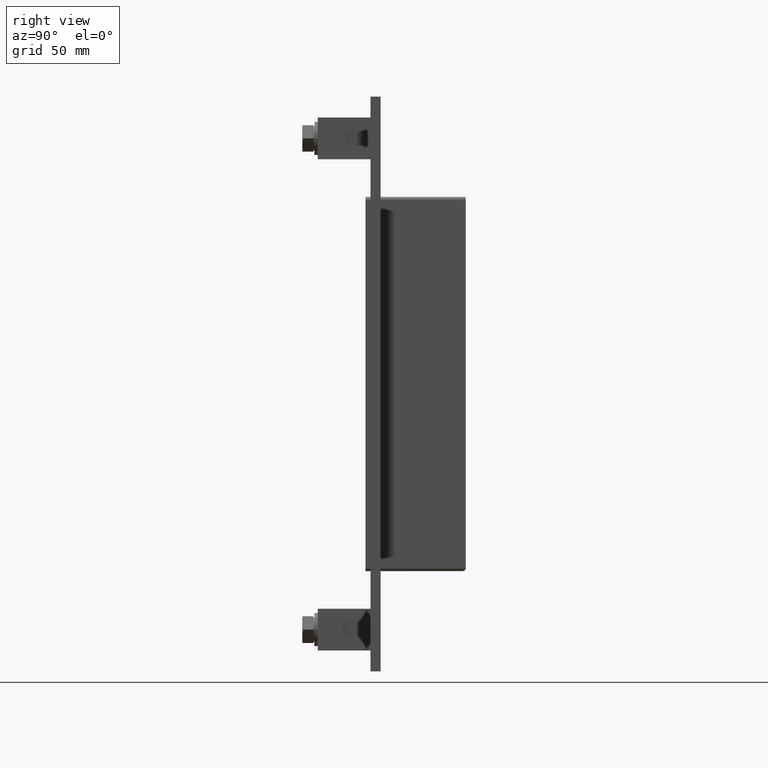
[diagram: clean part render]
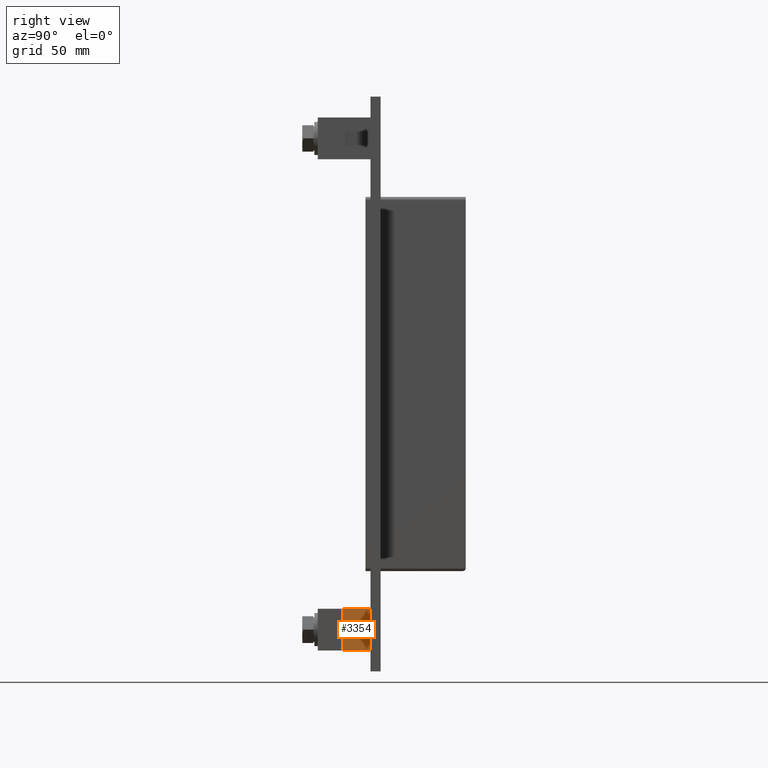
[diagram: same view with one face highlighted and labeled with its STEP entity id]
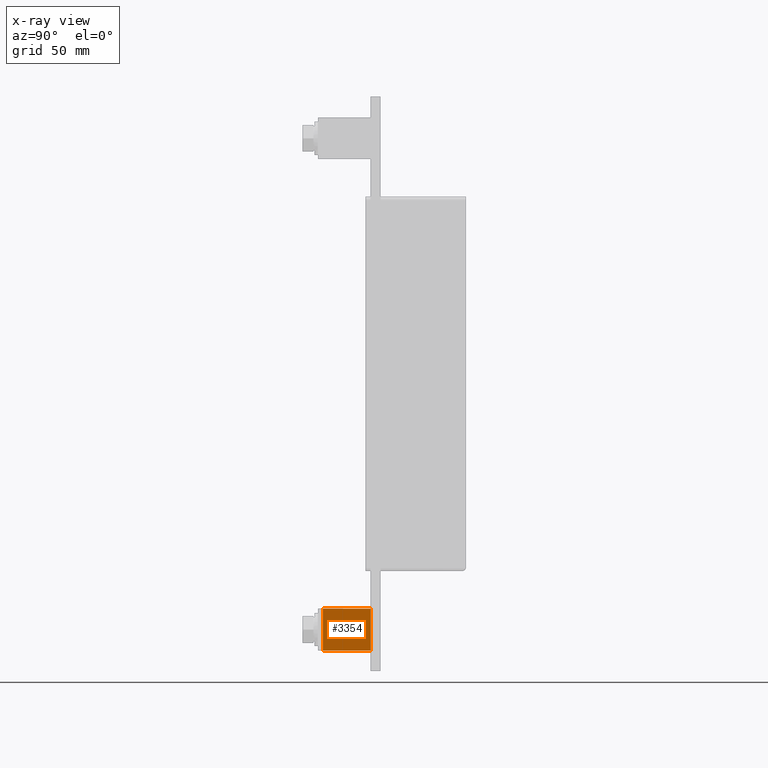
[diagram: x-ray of the same camera — body ghosted, the highlighted face saturated]
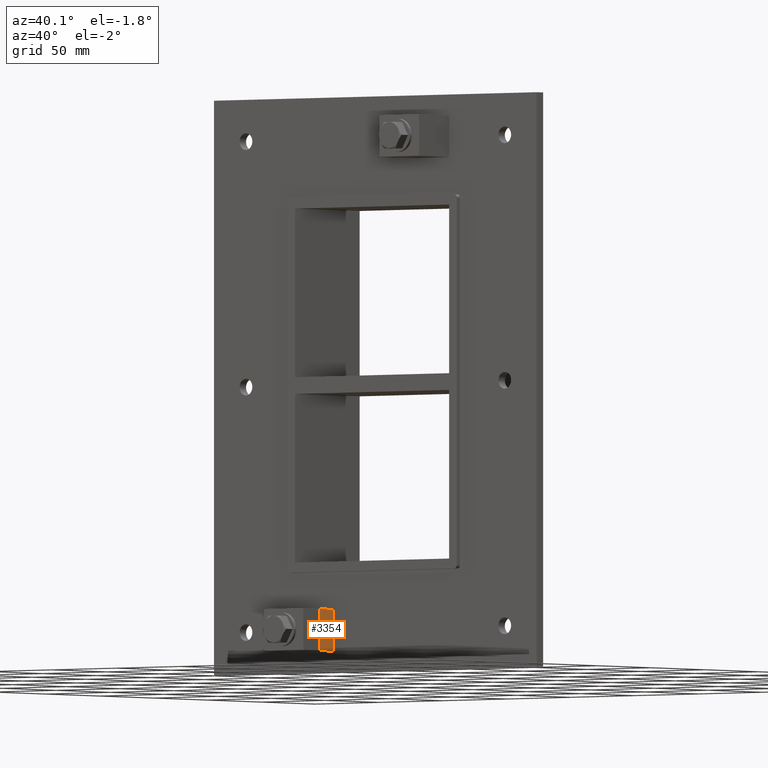
[diagram: same view with one face highlighted and labeled with its STEP entity id]
A machine part, right view. The second image highlights one B-rep face of the part: STEP entity #3354.
The next image is the same camera in x-ray: the body ghosted, the highlighted face saturated — about 0% of this face is hidden behind the body in this view.
A second angle (auxiliary view) of the same face is appended — the face is thin or edge-on in the first view.
In plain terms, the highlighted planar face has unit normal (1, 0, 0).
Its self-contained STEP definition (entity closure, byte-faithful):
#3298=CARTESIAN_POINT('',(-32.750000000000021,0.0,-134.5));
#3299=VERTEX_POINT('',#3298);
#3307=CARTESIAN_POINT('',(-32.750000000000021,-28.600000000000001,-134.5));
#3308=VERTEX_POINT('',#3307);
#3315=CARTESIAN_POINT('',(-32.750000000000021,0.0,-134.5));
#3316=DIRECTION('',(0.0,-1.0,0.0));
#3317=VECTOR('',#3316,28.600000000000001);
#3318=LINE('',#3315,#3317);
#3319=EDGE_CURVE('',#3299,#3308,#3318,.T.);
#3324=CARTESIAN_POINT('',(-32.750000000000021,0.0,-159.50000000000003));
#3325=DIRECTION('',(1.0,0.0,0.0));
#3326=DIRECTION('',(0.0,0.0,1.0));
#3327=AXIS2_PLACEMENT_3D('',#3324,#3325,#3326);
#3328=PLANE('',#3327);
#3329=CARTESIAN_POINT('',(-32.750000000000021,0.0,-159.50000000000003));
#3330=VERTEX_POINT('',#3329);
#3331=CARTESIAN_POINT('',(-32.750000000000021,0.0,-134.5));
#3332=DIRECTION('',(0.0,0.0,-1.0));
#3333=VECTOR('',#3332,25.000000000000028);
#3334=LINE('',#3331,#3333);
#3335=EDGE_CURVE('',#3299,#3330,#3334,.T.);
#3336=ORIENTED_EDGE('',*,*,#3335,.F.);
#3337=ORIENTED_EDGE('',*,*,#3319,.T.);
#3338=CARTESIAN_POINT('',(-32.750000000000021,-28.600000000000001,-159.50000000000003));
#3339=VERTEX_POINT('',#3338);
#3340=CARTESIAN_POINT('',(-32.750000000000021,-28.600000000000001,-159.50000000000003));
#3341=DIRECTION('',(0.0,0.0,1.0));
#3342=VECTOR('',#3341,25.000000000000028);
#3343=LINE('',#3340,#3342);
#3344=EDGE_CURVE('',#3339,#3308,#3343,.T.);
#3345=ORIENTED_EDGE('',*,*,#3344,.F.);
#3346=CARTESIAN_POINT('',(-32.750000000000021,0.0,-159.50000000000003));
#3347=DIRECTION('',(0.0,-1.0,0.0));
#3348=VECTOR('',#3347,28.600000000000001);
#3349=LINE('',#3346,#3348);
#3350=EDGE_CURVE('',#3330,#3339,#3349,.T.);
#3351=ORIENTED_EDGE('',*,*,#3350,.F.);
#3352=EDGE_LOOP('',(#3336,#3337,#3345,#3351));
#3353=FACE_OUTER_BOUND('',#3352,.T.);
#3354=ADVANCED_FACE('',(#3353),#3328,.T.);